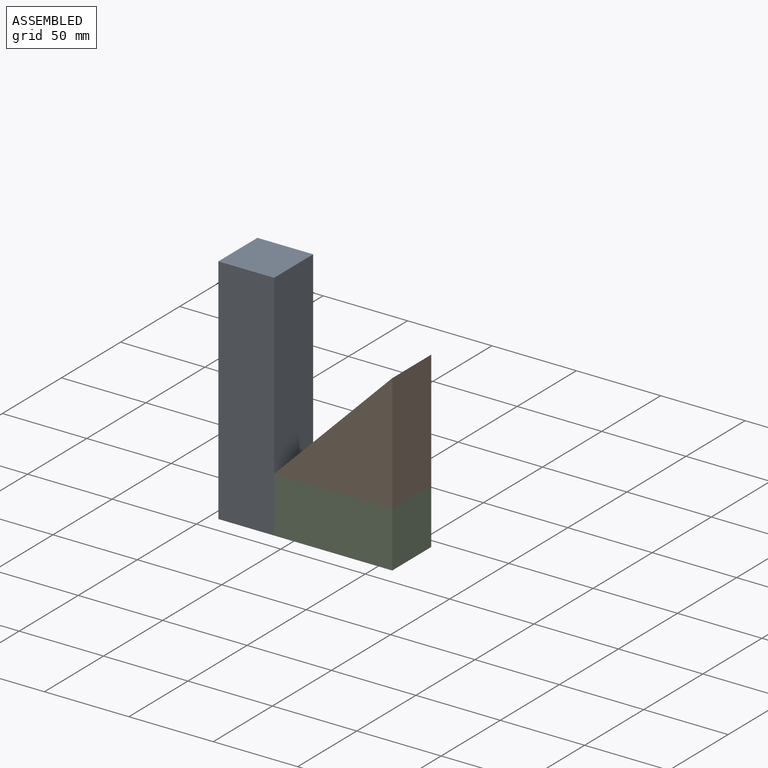
[diagram: assembled view]
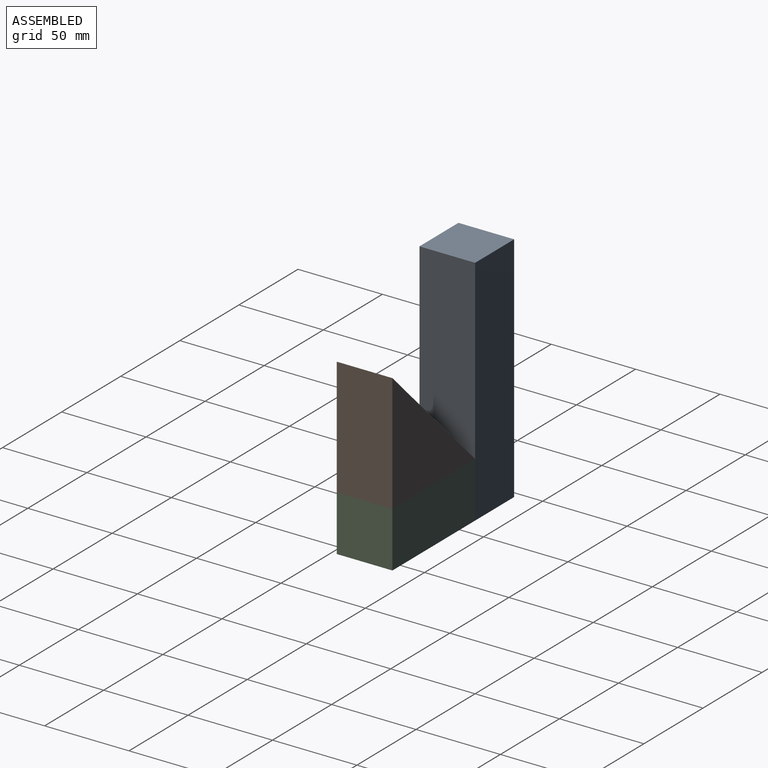
[diagram: assembled view, second angle]
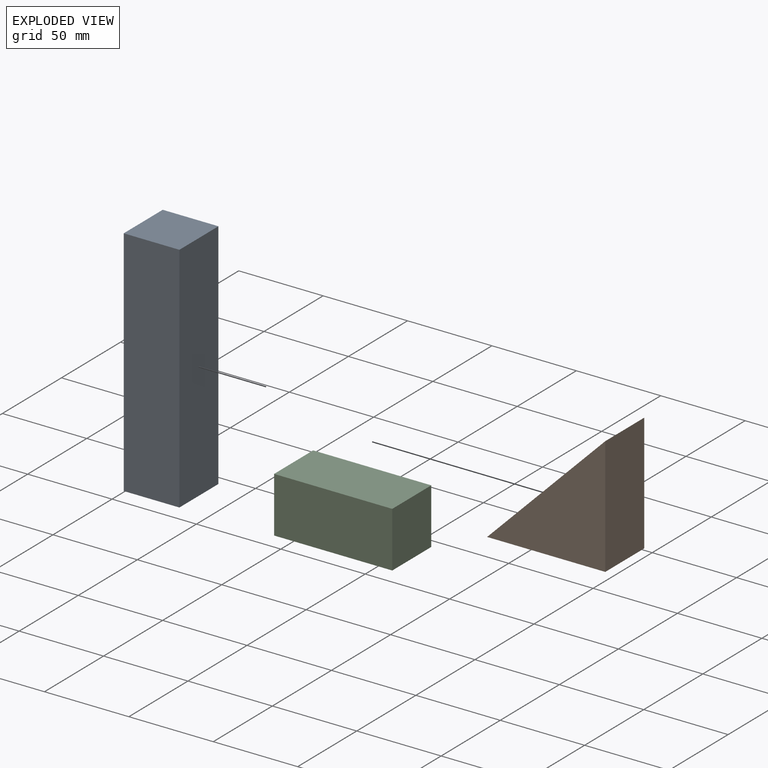
[diagram: exploded view]
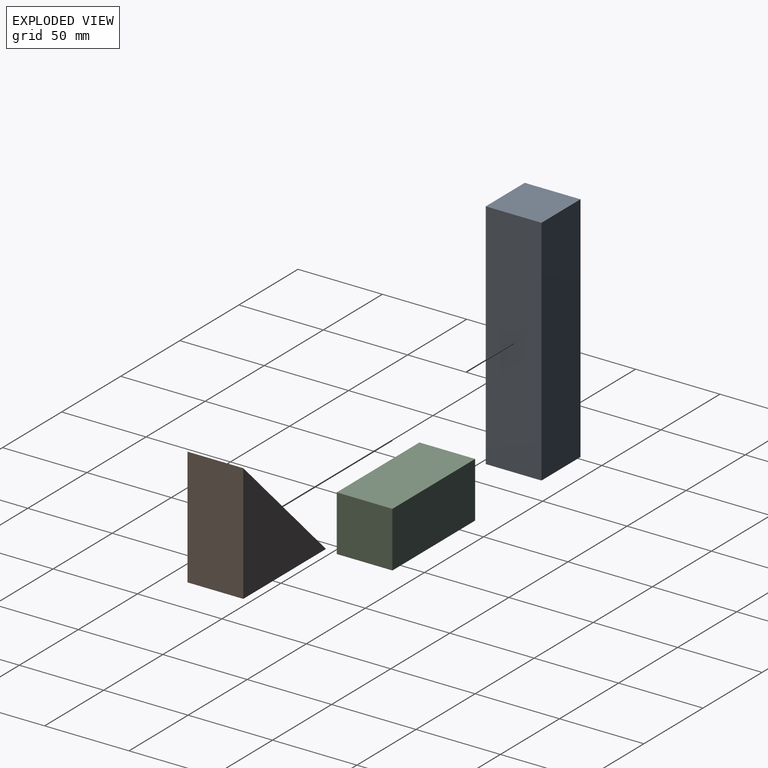
[diagram: exploded view, second angle]
ASSEMBLY  parts=3 mates=6
PART A: 6 faces, bbox 33x33x138 mm
  f0: plane 33x33mm, normal (0,0,1), area 1089mm2, adj f1,f3,f4,f5
  f1: plane 138x33mm, normal (-1,0,0), area 4554mm2, adj f0,f2,f4,f5
  f2: plane 33x33mm, normal (0,0,-1), area 1089mm2, adj f1,f3,f4,f5
  f3: plane 138x33mm, normal (1,0,0), area 4554mm2, adj f0,f2,f4,f5
  f4: plane 138x33mm, normal (0,-1,0), area 4554mm2, adj f0,f1,f2,f3
  f5: plane 138x33mm, normal (0,1,0), area 4554mm2, adj f0,f1,f2,f3
PART B: 5 faces, bbox 70x33x70 mm
  f0: plane 70x33mm, normal (1,0,0), area 2310mm2, adj f1,f2,f3,f4
  f1: plane 70x70mm, normal (-0.71,0,0.71), area 3266.8mm2, adj f0,f2,f3,f4
  f2: plane 70x33mm, normal (0,0,-1), area 2310mm2, adj f0,f1,f3,f4
  f3: plane 70x70mm, normal (0,-1,0), area 2450mm2, adj f0,f1,f2
  f4: plane 70x70mm, normal (0,1,0), area 2450mm2, adj f0,f1,f2
PART C: 6 faces, bbox 70x33x33 mm
  f0: plane 70x33mm, normal (0,0,1), area 2310mm2, adj f1,f3,f4,f5
  f1: plane 33x33mm, normal (-1,0,0), area 1089mm2, adj f0,f2,f4,f5
  f2: plane 70x33mm, normal (0,0,-1), area 2310mm2, adj f1,f3,f4,f5
  f3: plane 33x33mm, normal (1,0,0), area 1089mm2, adj f0,f2,f4,f5
  f4: plane 70x33mm, normal (0,-1,0), area 2310mm2, adj f0,f1,f2,f3
  f5: plane 70x33mm, normal (0,1,0), area 2310mm2, adj f0,f1,f2,f3
PLACE A t=(-108.31,-10.8,-100.47)mm
PLACE B t=(-38.31,-10.8,-67.47)mm
PLACE C t=(-38.31,-10.8,-100.47)mm
MATE planar A.f2 <-> C.f2  axis (0,0,-1) through (-124.81,-27.3,-100.47)mm
MATE planar B.f0 <-> C.f3  axis (1,0,0) through (-38.31,-27.3,-32.47)mm
MATE planar C.f1 <-> A.f3  axis (-1,0,0) through (-108.31,-27.3,-83.97)mm
MATE planar C.f4 <-> B.f3  axis (0,-1,0) through (-73.31,-43.8,-83.97)mm
MATE planar A.f4 <-> C.f4  axis (0,-1,0) through (-124.81,-43.8,-31.47)mm
MATE planar B.f2 <-> C.f0  axis (0,0,-1) through (-73.31,-27.3,-67.47)mm
